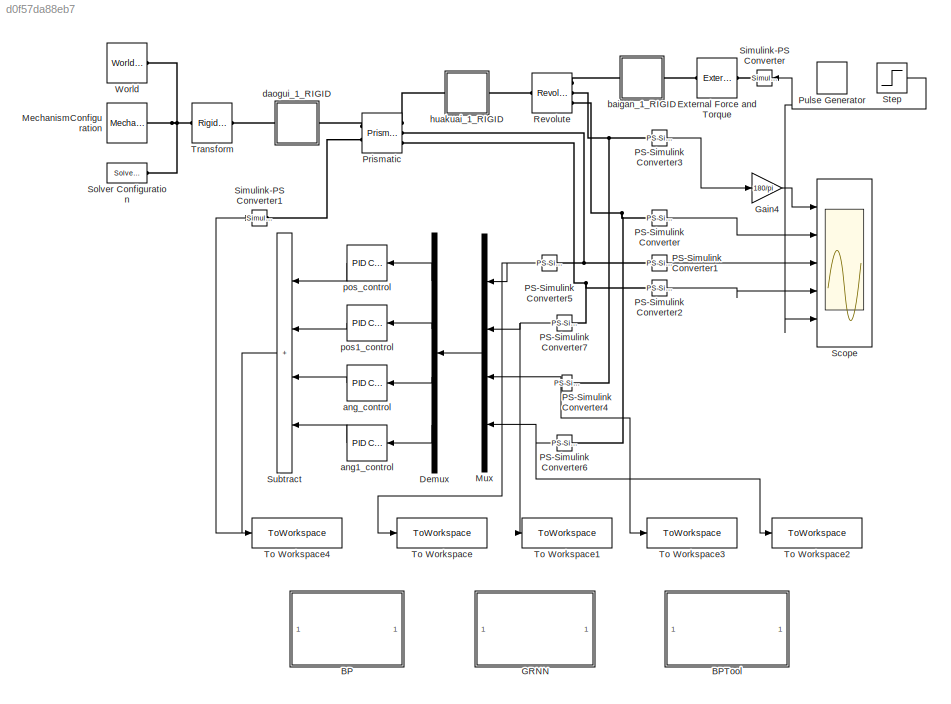
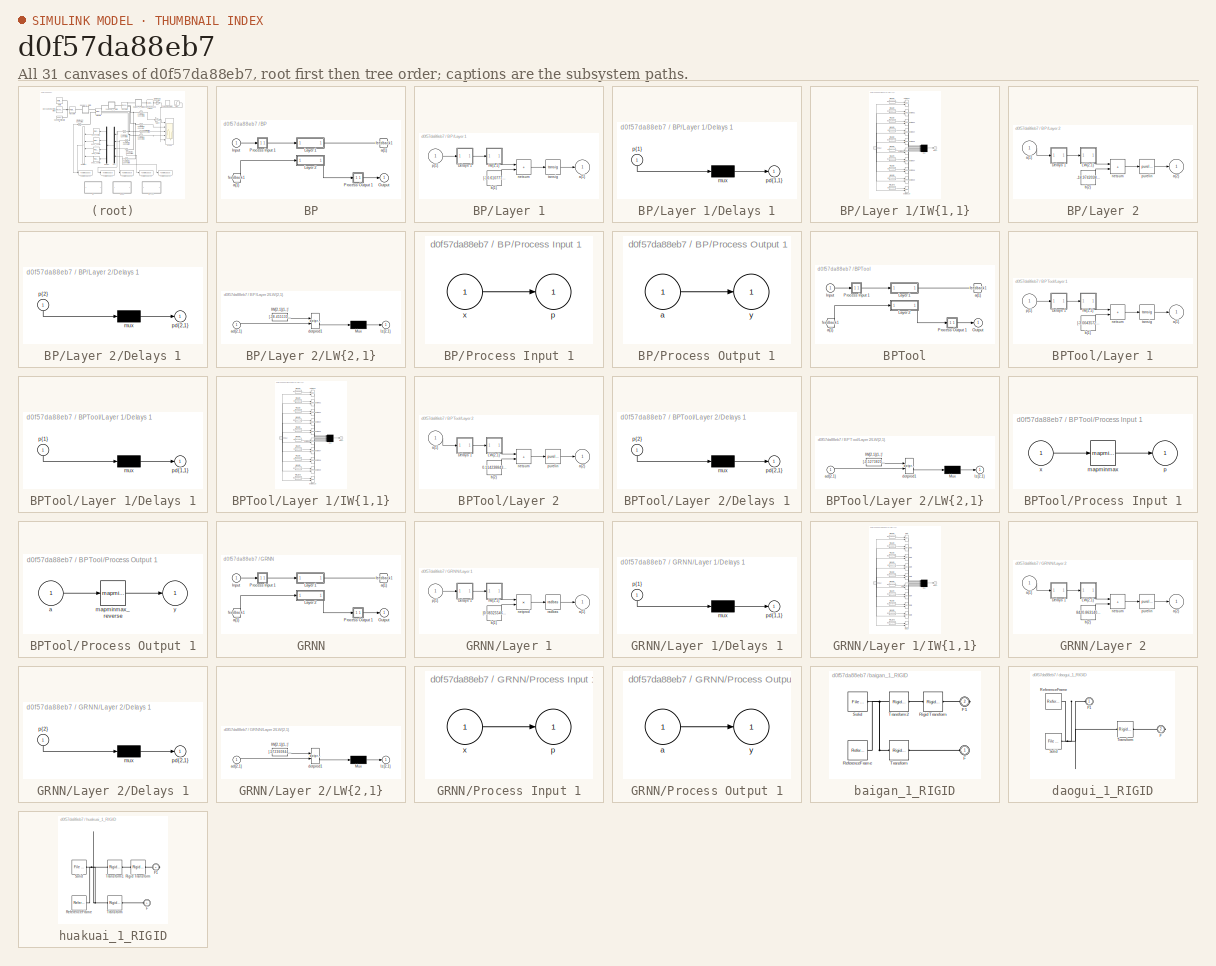
[diagram: thumbnail index - all 31 canvases of the model, root first then tree order]
MODEL slx_d0f57da88eb7
KIND model
CONFIG AbsTol = auto
CONFIG EnableMultiTasking = off
CONFIG FixedStep = auto
CONFIG MaxStep = auto
CONFIG MinStep = auto
CONFIG RelTol = 1e-3
CONFIG SampleTimeConstraint = Unconstrained
CONFIG SolverName = VariableStepAuto
CONFIG StartTime = 0.0
CONFIG StopTime = 20
WORKSPACE source: external: MATLAB File  (data not in archive)
BLOCK [SubSystem] BP
  PortSchema = {"entries":[{"content":{"sides":[{"content":{"connectorIds":["Out1"]},"type":"ConnectorPlacement.EquallySpacedRectSide","uuid":"ea97cf08-b84c-4223-8914-1b28841d179d"},{"content":{"connectorIds":["In1"],"side":"RIGHT"},"type":"ConnectorPlacement.EquallySpacedRectSide","uuid":"202f11d8-69ca-41ad-a097-102b173584e2"},{"content":{"connectorIds":[],"side":"TOP"},"type":"ConnectorPlacement.EquallySpacedR...<+384ch>
  Ports = [1, 1]
  RequestExecContextInheritance = off
BLOCK [From] BP/ a{1} 
  GotoTag = feedback1
BLOCK [Inport] BP/Input
  PortDimensions = 4
BLOCK [SubSystem] BP/Layer 1
  Ports = [1, 1]
  RequestExecContextInheritance = off
BLOCK [SubSystem] BP/Layer 1/Delays 1
  Ports = [1, 1]
  RequestExecContextInheritance = off
BLOCK [Mux] BP/Layer 1/Delays 1/mux
  Inputs = 1
  Ports = [1, 1]
BLOCK [Outport] BP/Layer 1/Delays 1/pd{1,1}
BLOCK [Inport] BP/Layer 1/Delays 1/p{1}
  NameLocation = left
  PortDimensions = 4
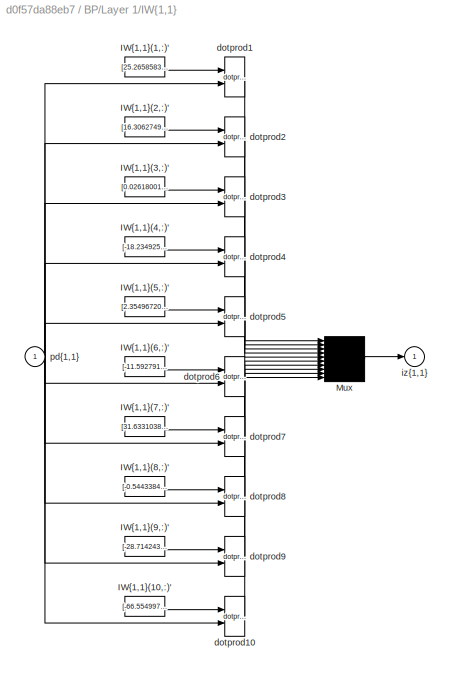
BLOCK [SubSystem] BP/Layer 1/IW{1,1}
  Ports = [1, 1]
  RequestExecContextInheritance = off
BLOCK [Constant] BP/Layer 1/IW{1,1}/IW{1,1}(1,:)'
  Value = [25.265858364663404955763326142914593219757080078125;-1.8103383963867403227965269252308644354343414306640625;-6.001229644292774167979587218724191188812255859375;-5.55789998735645962568696631933562457561492919921875]
BLOCK [Constant] BP/Layer 1/IW{1,1}/IW{1,1}(10,:)'
  Value = [-66.5549972771616609179545775987207889556884765625;-13.87429734900216971027475665323436260223388671875;-139.206120748230347317075938917696475982666015625;-9.0261640295758862606589900678955018520355224609375]
BLOCK [Constant] BP/Layer 1/IW{1,1}/IW{1,1}(2,:)'
  Value = [16.30627491953763552601230912841856479644775390625;12.6058566662972157956801311229355633258819580078125;9.27814044969331774836973636411130428314208984375;5.47891062646043724981836930965073406696319580078125]
BLOCK [Constant] BP/Layer 1/IW{1,1}/IW{1,1}(3,:)'
  Value = [0.026180015617267571315096574835479259490966796875;0.12015844470270507782228008863967261277139186859130859375;2.015201693149206274568996377638541162014007568359375;0.35738959136847336939268870992236770689487457275390625]
BLOCK [Constant] BP/Layer 1/IW{1,1}/IW{1,1}(4,:)'
  Value = [-18.234925386308528771905912435613572597503662109375;-8.88063620261446118320236564613878726959228515625;-20.80489562286691551662443089298903942108154296875;-6.39369866292602662127819712623022496700286865234375]
BLOCK [Constant] BP/Layer 1/IW{1,1}/IW{1,1}(5,:)'
  Value = [2.3549672050158694247556923073716461658477783203125;1.9263331860842443088444042587070725858211517333984375;23.840886487599139087478761211968958377838134765625;3.147023623487724908187601613462902605533599853515625]
BLOCK [Constant] BP/Layer 1/IW{1,1}/IW{1,1}(6,:)'
  Value = [-11.5927919573528921404204083955846726894378662109375;-6.75611608060503154860043650842271745204925537109375;31.2778651028639131936870398931205272674560546875;-6.550890424082698615393383079208433628082275390625]
BLOCK [Constant] BP/Layer 1/IW{1,1}/IW{1,1}(7,:)'
  Value = [31.633103850419256986015170696191489696502685546875;4.32344873467781010134558528079651296138763427734375;37.3554718668593039865299942903220653533935546875;1.9563005735288301334406924070208333432674407958984375]
BLOCK [Constant] BP/Layer 1/IW{1,1}/IW{1,1}(8,:)'
  Value = [-0.5443384659674295189546455731033347547054290771484375;-0.89206844033772647595270655074273236095905303955078125;1.154125203998702442476087526301853358745574951171875;-2.016004353430647544342946275719441473484039306640625]
BLOCK [Constant] BP/Layer 1/IW{1,1}/IW{1,1}(9,:)'
  Value = [-28.714243206021915710834946366958320140838623046875;-4.09986652458790334918603548430837690830230712890625;26.073463271938674523653389769606292247772216796875;-5.07935832977870038718037903890945017337799072265625]
BLOCK [Mux] BP/Layer 1/IW{1,1}/Mux
  Inputs = 10
  Ports = [10, 1]
BLOCK [Reference] BP/Layer 1/IW{1,1}/dotprod1  REF=neural/Weight Functions/dotprod
  Ports = [2, 1]
  SourceBlock = neural/Weight Functions/dotprod
  SourceProductBaseCode = NN
  SourceType = DOTPROD
BLOCK [Reference] BP/Layer 1/IW{1,1}/dotprod10  REF=neural/Weight Functions/dotprod
  Ports = [2, 1]
  SourceBlock = neural/Weight Functions/dotprod
  SourceProductBaseCode = NN
  SourceType = DOTPROD
BLOCK [Reference] BP/Layer 1/IW{1,1}/dotprod2  REF=neural/Weight Functions/dotprod
  Ports = [2, 1]
  SourceBlock = neural/Weight Functions/dotprod
  SourceProductBaseCode = NN
  SourceType = DOTPROD
BLOCK [Reference] BP/Layer 1/IW{1,1}/dotprod3  REF=neural/Weight Functions/dotprod
  Ports = [2, 1]
  SourceBlock = neural/Weight Functions/dotprod
  SourceProductBaseCode = NN
  SourceType = DOTPROD
BLOCK [Reference] BP/Layer 1/IW{1,1}/dotprod4  REF=neural/Weight Functions/dotprod
  Ports = [2, 1]
  SourceBlock = neural/Weight Functions/dotprod
  SourceProductBaseCode = NN
  SourceType = DOTPROD
BLOCK [Reference] BP/Layer 1/IW{1,1}/dotprod5  REF=neural/Weight Functions/dotprod
  Ports = [2, 1]
  SourceBlock = neural/Weight Functions/dotprod
  SourceProductBaseCode = NN
  SourceType = DOTPROD
BLOCK [Reference] BP/Layer 1/IW{1,1}/dotprod6  REF=neural/Weight Functions/dotprod
  Ports = [2, 1]
  SourceBlock = neural/Weight Functions/dotprod
  SourceProductBaseCode = NN
  SourceType = DOTPROD
BLOCK [Reference] BP/Layer 1/IW{1,1}/dotprod7  REF=neural/Weight Functions/dotprod
  Ports = [2, 1]
  SourceBlock = neural/Weight Functions/dotprod
  SourceProductBaseCode = NN
  SourceType = DOTPROD
BLOCK [Reference] BP/Layer 1/IW{1,1}/dotprod8  REF=neural/Weight Functions/dotprod
  Ports = [2, 1]
  SourceBlock = neural/Weight Functions/dotprod
  SourceProductBaseCode = NN
  SourceType = DOTPROD
BLOCK [Reference] BP/Layer 1/IW{1,1}/dotprod9  REF=neural/Weight Functions/dotprod
  Ports = [2, 1]
  SourceBlock = neural/Weight Functions/dotprod
  SourceProductBaseCode = NN
  SourceType = DOTPROD
BLOCK [Outport] BP/Layer 1/IW{1,1}/iz{1,1}
BLOCK [Inport] BP/Layer 1/IW{1,1}/pd{1,1}
  PortDimensions = 4
BLOCK [Outport] BP/Layer 1/a{1}
  InitialOutput = [0;0;0;0;0;0;0;0;0;0]
BLOCK [Constant] BP/Layer 1/b{1}
  Value = [-10.6107770440542008572037957492284476757049560546875;-9.0214618077921411298802922829054296016693115234375;0.201710144795275991835836748578003607690334320068359375;7.7779699911773452214447388541884720325469970703125;-4.868489967269315599196488619782030582427978515625;-9.6841058845055858483874544617719948291778564453125;-8.3997608801577055004372596158646047115325927734375;-2.2391316142781723108612...<+136ch>
BLOCK [Sum] BP/Layer 1/netsum
  IconShape = rectangular
  InputSameDT = on
  Inputs = 2
  OutDataTypeStr = Inherit: Same as first input
  Ports = [2, 1]
  SaturateOnIntegerOverflow = on
BLOCK [Inport] BP/Layer 1/p{1}
  PortDimensions = 4
BLOCK [Reference] BP/Layer 1/tansig  REF=neural/Transfer Functions/tansig
  Ports = [1, 1]
  SourceBlock = neural/Transfer Functions/tansig
  SourceProductBaseCode = NN
  SourceType = TANSIG
BLOCK [SubSystem] BP/Layer 2
  Ports = [1, 1]
  RequestExecContextInheritance = off
BLOCK [SubSystem] BP/Layer 2/Delays 1
  Ports = [1, 1]
  RequestExecContextInheritance = off
BLOCK [Mux] BP/Layer 2/Delays 1/mux
  Inputs = 1
  Ports = [1, 1]
BLOCK [Outport] BP/Layer 2/Delays 1/pd{2,1}
BLOCK [Inport] BP/Layer 2/Delays 1/p{2}
  NameLocation = left
  PortDimensions = 10
BLOCK [SubSystem] BP/Layer 2/LW{2,1}
  Ports = [1, 1]
  RequestExecContextInheritance = off
BLOCK [Constant] BP/Layer 2/LW{2,1}/IW{2,1}(1,:)'
  Value = [-38.455131207282562399996095336973667144775390625;-29.19610397380950672641120036132633686065673828125;35.416569242447991427980014123022556304931640625;58.27563616794508760676762904040515422821044921875;41.697440287352009136156993918120861053466796875;42.61450575008218066841436666436493396759033203125;-17.94003038084166945509423385374248027801513671875;25.100002955498659673594374908134341239929199...<+106ch>
BLOCK [Mux] BP/Layer 2/LW{2,1}/Mux
  Inputs = 1
  Ports = [1, 1]
BLOCK [Inport] BP/Layer 2/LW{2,1}/ad{2,1}
  PortDimensions = 10
BLOCK [Reference] BP/Layer 2/LW{2,1}/dotprod1  REF=neural/Weight Functions/dotprod
  Ports = [2, 1]
  SourceBlock = neural/Weight Functions/dotprod
  SourceProductBaseCode = NN
  SourceType = DOTPROD
BLOCK [Outport] BP/Layer 2/LW{2,1}/lz{2,1}
BLOCK [Inport] BP/Layer 2/a{1} 
  PortDimensions = 10
BLOCK [Outport] BP/Layer 2/a{2}
  InitialOutput = 0
BLOCK [Constant] BP/Layer 2/b{2}
  Value = -18.97420382072682087937209871597588062286376953125
BLOCK [Sum] BP/Layer 2/netsum
  IconShape = rectangular
  InputSameDT = on
  Inputs = 2
  OutDataTypeStr = Inherit: Same as first input
  Ports = [2, 1]
  SaturateOnIntegerOverflow = on
BLOCK [Reference] BP/Layer 2/purelin  REF=neural/Transfer Functions/purelin
  Ports = [1, 1]
  SourceBlock = neural/Transfer Functions/purelin
  SourceProductBaseCode = NN
  SourceType = PURELIN
BLOCK [Outport] BP/Output
  InitialOutput = 0
BLOCK [SubSystem] BP/Process Input 1
  Ports = [1, 1]
  RequestExecContextInheritance = off
BLOCK [Outport] BP/Process Input 1/p
  PortDimensions = 4
BLOCK [Inport] BP/Process Input 1/x
  PortDimensions = 4
BLOCK [SubSystem] BP/Process Output 1
  Ports = [1, 1]
  RequestExecContextInheritance = off
BLOCK [Inport] BP/Process Output 1/a
  PortDimensions = 1
BLOCK [Outport] BP/Process Output 1/y
  PortDimensions = 1
BLOCK [Goto] BP/a{1}
  GotoTag = feedback1
BLOCK [SubSystem] BPTool
  PortSchema = {"entries":[{"content":{"sides":[{"content":{"connectorIds":["Out1"]},"type":"ConnectorPlacement.EquallySpacedRectSide","uuid":"ea97cf08-b84c-4223-8914-1b28841d179d"},{"content":{"connectorIds":["In1"],"side":"RIGHT"},"type":"ConnectorPlacement.EquallySpacedRectSide","uuid":"202f11d8-69ca-41ad-a097-102b173584e2"},{"content":{"connectorIds":[],"side":"TOP"},"type":"ConnectorPlacement.EquallySpacedR...<+384ch>
  Ports = [1, 1]
  RequestExecContextInheritance = off
BLOCK [From] BPTool/ a{1} 
  GotoTag = feedback1
BLOCK [Inport] BPTool/Input
  PortDimensions = 4
BLOCK [SubSystem] BPTool/Layer 1
  Ports = [1, 1]
  RequestExecContextInheritance = off
BLOCK [SubSystem] BPTool/Layer 1/Delays 1
  Ports = [1, 1]
  RequestExecContextInheritance = off
BLOCK [Mux] BPTool/Layer 1/Delays 1/mux
  Inputs = 1
  Ports = [1, 1]
BLOCK [Outport] BPTool/Layer 1/Delays 1/pd{1,1}
BLOCK [Inport] BPTool/Layer 1/Delays 1/p{1}
  NameLocation = left
  PortDimensions = 4
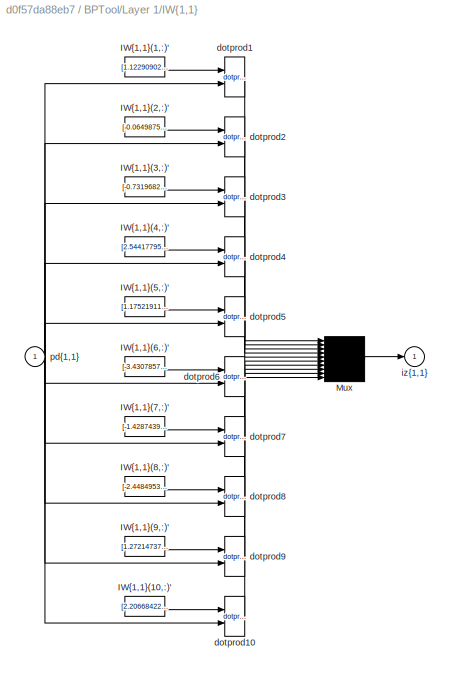
BLOCK [SubSystem] BPTool/Layer 1/IW{1,1}
  Ports = [1, 1]
  RequestExecContextInheritance = off
BLOCK [Constant] BPTool/Layer 1/IW{1,1}/IW{1,1}(1,:)'
  Value = [1.1229090279324125400961520426790229976177215576171875;-2.645066374273375320314016789779998362064361572265625;-0.404428069011812940658501247526146471500396728515625;-0.316292401019539759499110687102074734866619110107421875]
BLOCK [Constant] BPTool/Layer 1/IW{1,1}/IW{1,1}(10,:)'
  Value = [2.20668422210949710660088385338895022869110107421875;2.884345568190866071489608657429926097393035888671875;1.5569083249624628972895834522205404937267303466796875;3.093651462767843529633182697580195963382720947265625]
BLOCK [Constant] BPTool/Layer 1/IW{1,1}/IW{1,1}(2,:)'
  Value = [-0.06498756526824985002566137382018496282398700714111328125;1.2414236159949834092941500784945674240589141845703125;0.8598113844266699334895065476302988827228546142578125;-1.1505116576420937324343185537145473062992095947265625]
BLOCK [Constant] BPTool/Layer 1/IW{1,1}/IW{1,1}(3,:)'
  Value = [-0.73196823514489472994881680278922431170940399169921875;3.88576268981829020532359209028072655200958251953125;0.09304187708607451756659401098659145645797252655029296875;0.89366995774699808929852906658197753131389617919921875]
BLOCK [Constant] BPTool/Layer 1/IW{1,1}/IW{1,1}(4,:)'
  Value = [2.544177950861187920139627749449573457241058349609375;0.670342910631637867169274613843299448490142822265625;1.6277748981667017336150138362427242100238800048828125;-0.7907585439848305863819177830009721219539642333984375]
BLOCK [Constant] BPTool/Layer 1/IW{1,1}/IW{1,1}(5,:)'
  Value = [1.1752191137397949294296495281741954386234283447265625;1.7067504805808189072280356413102708756923675537109375;-0.98889683810537587493882938360911794006824493408203125;-2.01299639868461266445365254185162484645843505859375]
BLOCK [Constant] BPTool/Layer 1/IW{1,1}/IW{1,1}(6,:)'
  Value = [-3.430785741213546291561442558304406702518463134765625;0.09492075313908643341420656724949367344379425048828125;-3.921727779432336635778710842714644968509674072265625;-0.268199375499008796364108775378554128110408782958984375]
BLOCK [Constant] BPTool/Layer 1/IW{1,1}/IW{1,1}(7,:)'
  Value = [-1.4287439095481395678888247857685200870037078857421875;0.3425243201013203897531411712407134473323822021484375;2.14636659086642822558133048005402088165283203125;3.774275490297800406125361405429430305957794189453125]
BLOCK [Constant] BPTool/Layer 1/IW{1,1}/IW{1,1}(8,:)'
  Value = [-2.4484953047126705172331639914773404598236083984375;0.92009365259292918981515185805619694292545318603515625;-0.1515431830645543043178946618354530073702335357666015625;0.88777515878687662809198855029535479843616485595703125]
BLOCK [Constant] BPTool/Layer 1/IW{1,1}/IW{1,1}(9,:)'
  Value = [1.272147373788531155014425166882574558258056640625;2.194558914347468192573842316051013767719268798828125;-0.96613593652774698572471834268071688711643218994140625;0.6387971891737322938098486702074296772480010986328125]
BLOCK [Mux] BPTool/Layer 1/IW{1,1}/Mux
  Inputs = 10
  Ports = [10, 1]
BLOCK [Reference] BPTool/Layer 1/IW{1,1}/dotprod1  REF=neural/Weight Functions/dotprod
  Ports = [2, 1]
  SourceBlock = neural/Weight Functions/dotprod
  SourceProductBaseCode = NN
  SourceType = DOTPROD
BLOCK [Reference] BPTool/Layer 1/IW{1,1}/dotprod10  REF=neural/Weight Functions/dotprod
  Ports = [2, 1]
  SourceBlock = neural/Weight Functions/dotprod
  SourceProductBaseCode = NN
  SourceType = DOTPROD
BLOCK [Reference] BPTool/Layer 1/IW{1,1}/dotprod2  REF=neural/Weight Functions/dotprod
  Ports = [2, 1]
  SourceBlock = neural/Weight Functions/dotprod
  SourceProductBaseCode = NN
  SourceType = DOTPROD
BLOCK [Reference] BPTool/Layer 1/IW{1,1}/dotprod3  REF=neural/Weight Functions/dotprod
  Ports = [2, 1]
  SourceBlock = neural/Weight Functions/dotprod
  SourceProductBaseCode = NN
  SourceType = DOTPROD
BLOCK [Reference] BPTool/Layer 1/IW{1,1}/dotprod4  REF=neural/Weight Functions/dotprod
  Ports = [2, 1]
  SourceBlock = neural/Weight Functions/dotprod
  SourceProductBaseCode = NN
  SourceType = DOTPROD
BLOCK [Reference] BPTool/Layer 1/IW{1,1}/dotprod5  REF=neural/Weight Functions/dotprod
  Ports = [2, 1]
  SourceBlock = neural/Weight Functions/dotprod
  SourceProductBaseCode = NN
  SourceType = DOTPROD
BLOCK [Reference] BPTool/Layer 1/IW{1,1}/dotprod6  REF=neural/Weight Functions/dotprod
  Ports = [2, 1]
  SourceBlock = neural/Weight Functions/dotprod
  SourceProductBaseCode = NN
  SourceType = DOTPROD
BLOCK [Reference] BPTool/Layer 1/IW{1,1}/dotprod7  REF=neural/Weight Functions/dotprod
  Ports = [2, 1]
  SourceBlock = neural/Weight Functions/dotprod
  SourceProductBaseCode = NN
  SourceType = DOTPROD
BLOCK [Reference] BPTool/Layer 1/IW{1,1}/dotprod8  REF=neural/Weight Functions/dotprod
  Ports = [2, 1]
  SourceBlock = neural/Weight Functions/dotprod
  SourceProductBaseCode = NN
  SourceType = DOTPROD
BLOCK [Reference] BPTool/Layer 1/IW{1,1}/dotprod9  REF=neural/Weight Functions/dotprod
  Ports = [2, 1]
  SourceBlock = neural/Weight Functions/dotprod
  SourceProductBaseCode = NN
  SourceType = DOTPROD
BLOCK [Outport] BPTool/Layer 1/IW{1,1}/iz{1,1}
BLOCK [Inport] BPTool/Layer 1/IW{1,1}/pd{1,1}
  PortDimensions = 4
BLOCK [Outport] BPTool/Layer 1/a{1}
  InitialOutput = [0;0;0;0;0;0;0;0;0;0]
BLOCK [Constant] BPTool/Layer 1/b{1}
  Value = [-3.00435728790505240937136477441526949405670166015625;-0.656454130346032282972146276733838021755218505859375;4.09710221202972935117259112303145229816436767578125;-4.01269699463378071158103921334259212017059326171875;-0.1449035741753040007484543139071320183575153350830078125;0.61340971503073415949103264210862107574939727783203125;-3.931337135228960999455694036441855132579803466796875;5.56388769055...<+150ch>
BLOCK [Sum] BPTool/Layer 1/netsum
  IconShape = rectangular
  InputSameDT = on
  Inputs = 2
  OutDataTypeStr = Inherit: Same as first input
  Ports = [2, 1]
  SaturateOnIntegerOverflow = on
BLOCK [Inport] BPTool/Layer 1/p{1}
  PortDimensions = 4
BLOCK [Reference] BPTool/Layer 1/tansig  REF=neural/Transfer Functions/tansig
  Ports = [1, 1]
  SourceBlock = neural/Transfer Functions/tansig
  SourceProductBaseCode = NN
  SourceType = TANSIG
BLOCK [SubSystem] BPTool/Layer 2
  Ports = [1, 1]
  RequestExecContextInheritance = off
BLOCK [SubSystem] BPTool/Layer 2/Delays 1
  Ports = [1, 1]
  RequestExecContextInheritance = off
BLOCK [Mux] BPTool/Layer 2/Delays 1/mux
  Inputs = 1
  Ports = [1, 1]
BLOCK [Outport] BPTool/Layer 2/Delays 1/pd{2,1}
BLOCK [Inport] BPTool/Layer 2/Delays 1/p{2}
  NameLocation = left
  PortDimensions = 10
BLOCK [SubSystem] BPTool/Layer 2/LW{2,1}
  Ports = [1, 1]
  RequestExecContextInheritance = off
BLOCK [Constant] BPTool/Layer 2/LW{2,1}/IW{2,1}(1,:)'
  Value = [-0.52738254650346083618472903253859840333461761474609375;-0.032672152667297164885251703481117147020995616912841796875;-0.92971623236840217341381276128231547772884368896484375;-0.03765291007553793478646042558466433547437191009521484375;-0.05094799929649181102764288198159192688763141632080078125;-1.017603752522325155638327487395144999027252197265625;0.03567197080063878172895286411403503734618425369...<+185ch>
BLOCK [Mux] BPTool/Layer 2/LW{2,1}/Mux
  Inputs = 1
  Ports = [1, 1]
BLOCK [Inport] BPTool/Layer 2/LW{2,1}/ad{2,1}
  PortDimensions = 10
BLOCK [Reference] BPTool/Layer 2/LW{2,1}/dotprod1  REF=neural/Weight Functions/dotprod
  Ports = [2, 1]
  SourceBlock = neural/Weight Functions/dotprod
  SourceProductBaseCode = NN
  SourceType = DOTPROD
BLOCK [Outport] BPTool/Layer 2/LW{2,1}/lz{2,1}
BLOCK [Inport] BPTool/Layer 2/a{1} 
  PortDimensions = 10
BLOCK [Outport] BPTool/Layer 2/a{2}
  InitialOutput = 0
BLOCK [Constant] BPTool/Layer 2/b{2}
  Value = 0.1142388432489153393678549264222965575754642486572265625
BLOCK [Sum] BPTool/Layer 2/netsum
  IconShape = rectangular
  InputSameDT = on
  Inputs = 2
  OutDataTypeStr = Inherit: Same as first input
  Ports = [2, 1]
  SaturateOnIntegerOverflow = on
BLOCK [Reference] BPTool/Layer 2/purelin  REF=neural/Transfer Functions/purelin
  Ports = [1, 1]
  SourceBlock = neural/Transfer Functions/purelin
  SourceProductBaseCode = NN
  SourceType = PURELIN
BLOCK [Outport] BPTool/Output
  InitialOutput = 0
BLOCK [SubSystem] BPTool/Process Input 1
  Ports = [1, 1]
  RequestExecContextInheritance = off
BLOCK [Reference] BPTool/Process Input 1/mapminmax  REF=neural/Processing Functions/mapminmax
  Ports = [1, 1]
  SourceBlock = neural/Processing Functions/mapminmax
  SourceProductBaseCode = NN
  SourceType = MAPMINMAX Preprocess
BLOCK [Outport] BPTool/Process Input 1/p
  PortDimensions = 4
BLOCK [Inport] BPTool/Process Input 1/x
  PortDimensions = 4
BLOCK [SubSystem] BPTool/Process Output 1
  Ports = [1, 1]
  RequestExecContextInheritance = off
BLOCK [Inport] BPTool/Process Output 1/a
  PortDimensions = 1
BLOCK [Reference] BPTool/Process Output 1/mapminmax_reverse  REF=neural/Processing Functions/mapminmax_reverse
  Ports = [1, 1]
  SourceBlock = neural/Processing Functions/mapminmax_reverse
  SourceProductBaseCode = NN
  SourceType = MAPMINMAX Reverse Process
BLOCK [Outport] BPTool/Process Output 1/y
  PortDimensions = 1
BLOCK [Goto] BPTool/a{1}
  GotoTag = feedback1
BLOCK [Demux] Demux
  NameLocation = top
  Ports = [1, 4]
BLOCK [Reference] External Force and Torque  REF=sm_lib/Forces and
Torques/External Force
and Torque
  NameLocation = top
  Ports = [0, 0, 0, 0, 0, 1, 1]
  SourceBlock = sm_lib/Forces and\nTorques/External Force\nand Torque
  SourceProductBaseCode = MS
  SourceType = External Force\nand Torque
BLOCK [SubSystem] GRNN
  PortSchema = {"entries":[{"content":{"sides":[{"content":{"connectorIds":["Out1"]},"type":"ConnectorPlacement.EquallySpacedRectSide","uuid":"ea97cf08-b84c-4223-8914-1b28841d179d"},{"content":{"connectorIds":["In1"],"side":"RIGHT"},"type":"ConnectorPlacement.EquallySpacedRectSide","uuid":"202f11d8-69ca-41ad-a097-102b173584e2"},{"content":{"connectorIds":[],"side":"TOP"},"type":"ConnectorPlacement.EquallySpacedR...<+528ch>
  Ports = [1, 1]
  RequestExecContextInheritance = off
BLOCK [From] GRNN/ a{1} 
  GotoTag = feedback1
BLOCK [Inport] GRNN/Input
  PortDimensions = 4
BLOCK [SubSystem] GRNN/Layer 1
  Ports = [1, 1]
  RequestExecContextInheritance = off
BLOCK [SubSystem] GRNN/Layer 1/Delays 1
  Ports = [1, 1]
  RequestExecContextInheritance = off
BLOCK [Mux] GRNN/Layer 1/Delays 1/mux
  Inputs = 1
  Ports = [1, 1]
BLOCK [Outport] GRNN/Layer 1/Delays 1/pd{1,1}
BLOCK [Inport] GRNN/Layer 1/Delays 1/p{1}
  NameLocation = left
  PortDimensions = 4
BLOCK [SubSystem] GRNN/Layer 1/IW{1,1}
  Ports = [1, 1]
  RequestExecContextInheritance = off
BLOCK [Constant] GRNN/Layer 1/IW{1,1}/IW{1,1}(1,:)'
  Value = [0.0725331725404625426989468905958347022533416748046875;1.7837528659619630300170456393971107900142669677734375;0.1821328693272616927600893177441321313381195068359375;-2.334477541731148075854207490920089185237884521484375]
BLOCK [Constant] GRNN/Layer 1/IW{1,1}/IW{1,1}(10,:)'
  Value = [0.032404842447793964776980857322996598668396472930908203125;-0.00469003258014368852590880720754284993745386600494384765625;-6.623641680489217591250306060857155898702330887317657470703125e-05;0.000508570481755021472879130239874712060554884374141693115234375]
BLOCK [Constant] GRNN/Layer 1/IW{1,1}/IW{1,1}(2,:)'
  Value = [0.10155577171343059539321274087342317216098308563232421875;1.7318748285971949929518132194061763584613800048828125;0.144611734199708796833050428176647983491420745849609375;-2.209015017389865942476490090484730899333953857421875]
BLOCK [Constant] GRNN/Layer 1/IW{1,1}/IW{1,1}(3,:)'
  Value = [0.04731488321092318372063090237134019844233989715576171875;1.7115558546010130047676511821919120848178863525390625;0.2154346730458002456831678728121914900839328765869140625;-2.27892776677020147957364315516315400600433349609375]
BLOCK [Constant] GRNN/Layer 1/IW{1,1}/IW{1,1}(4,:)'
  Value = [-0.005027084716362511217224717796625554910860955715179443359375;0.1701787953756520865855605961769470013678073883056640625;0.028738173855598465877836389381627668626606464385986328125;-0.08578068838796333583918141130197909660637378692626953125]
BLOCK [Constant] GRNN/Layer 1/IW{1,1}/IW{1,1}(5,:)'
  Value = [0.020312986169675147085644795197367784567177295684814453125;0.2020862713209329031283090216675191186368465423583984375;0.0169134984450032554992304767438326962292194366455078125;-0.08827663983406057457425930579120176844298839569091796875]
BLOCK [Constant] GRNN/Layer 1/IW{1,1}/IW{1,1}(6,:)'
  Value = [0.028153891819299538268328575441046268679201602935791015625;1.511432793256257678393694732221774756908416748046875;0.2410879874454342763900882573580020107328891754150390625;-2.03411427734510663611899872194044291973114013671875]
BLOCK [Constant] GRNN/Layer 1/IW{1,1}/IW{1,1}(7,:)'
  Value = [0.13247137410489029374360825386247597634792327880859375;1.5972356841649999470433840542682446539402008056640625;0.10585258419716254973952374029977363534271717071533203125;-1.9645872609289904975327090141945518553256988525390625]
BLOCK [Constant] GRNN/Layer 1/IW{1,1}/IW{1,1}(8,:)'
  Value = [0.1667870451161795053440783931364421732723712921142578125;1.405163467051229186921545988298021256923675537109375;0.0647138584173257147558189217306789942085742950439453125;-1.6367815099621143559716074378229677677154541015625]
BLOCK [Constant] GRNN/Layer 1/IW{1,1}/IW{1,1}(9,:)'
  Value = [0.08486980720061054750402718127588741481304168701171875;0.201130967300382101914379973095492459833621978759765625;-0.0081014435693664392512669536472458275966346263885498046875;-0.0692133501048840249492144494070089422166347503662109375]
BLOCK [Mux] GRNN/Layer 1/IW{1,1}/Mux
  Inputs = 10
  Ports = [10, 1]
BLOCK [Reference] GRNN/Layer 1/IW{1,1}/dist1  REF=neural/Weight Functions/dist
  Ports = [2, 1]
  SourceBlock = neural/Weight Functions/dist
  SourceProductBaseCode = NN
  SourceType = DIST
BLOCK [Reference] GRNN/Layer 1/IW{1,1}/dist10  REF=neural/Weight Functions/dist
  Ports = [2, 1]
  SourceBlock = neural/Weight Functions/dist
  SourceProductBaseCode = NN
  SourceType = DIST
BLOCK [Reference] GRNN/Layer 1/IW{1,1}/dist2  REF=neural/Weight Functions/dist
  Ports = [2, 1]
  SourceBlock = neural/Weight Functions/dist
  SourceProductBaseCode = NN
  SourceType = DIST
BLOCK [Reference] GRNN/Layer 1/IW{1,1}/dist3  REF=neural/Weight Functions/dist
  Ports = [2, 1]
  SourceBlock = neural/Weight Functions/dist
  SourceProductBaseCode = NN
  SourceType = DIST
BLOCK [Reference] GRNN/Layer 1/IW{1,1}/dist4  REF=neural/Weight Functions/dist
  Ports = [2, 1]
  SourceBlock = neural/Weight Functions/dist
  SourceProductBaseCode = NN
  SourceType = DIST
BLOCK [Reference] GRNN/Layer 1/IW{1,1}/dist5  REF=neural/Weight Functions/dist
  Ports = [2, 1]
  SourceBlock = neural/Weight Functions/dist
  SourceProductBaseCode = NN
  SourceType = DIST
BLOCK [Reference] GRNN/Layer 1/IW{1,1}/dist6  REF=neural/Weight Functions/dist
  Ports = [2, 1]
  SourceBlock = neural/Weight Functions/dist
  SourceProductBaseCode = NN
  SourceType = DIST
BLOCK [Reference] GRNN/Layer 1/IW{1,1}/dist7  REF=neural/Weight Functions/dist
  Ports = [2, 1]
  SourceBlock = neural/Weight Functions/dist
  SourceProductBaseCode = NN
  SourceType = DIST
BLOCK [Reference] GRNN/Layer 1/IW{1,1}/dist8  REF=neural/Weight Functions/dist
  Ports = [2, 1]
  SourceBlock = neural/Weight Functions/dist
  SourceProductBaseCode = NN
  SourceType = DIST
BLOCK [Reference] GRNN/Layer 1/IW{1,1}/dist9  REF=neural/Weight Functions/dist
  Ports = [2, 1]
  SourceBlock = neural/Weight Functions/dist
  SourceProductBaseCode = NN
  SourceType = DIST
BLOCK [Outport] GRNN/Layer 1/IW{1,1}/iz{1,1}
BLOCK [Inport] GRNN/Layer 1/IW{1,1}/pd{1,1}
  PortDimensions = 4
BLOCK [Outport] GRNN/Layer 1/a{1}
  InitialOutput = [0;0;0;0;0;0;0;0;0;0]
BLOCK [Constant] GRNN/Layer 1/b{1}
  Value = [0.08325546111576977159618451196365640498697757720947265625;0.08325546111576977159618451196365640498697757720947265625;0.08325546111576977159618451196365640498697757720947265625;0.08325546111576977159618451196365640498697757720947265625;0.08325546111576977159618451196365640498697757720947265625;0.08325546111576977159618451196365640498697757720947265625;0.0832554611157697715961845119636564049869775...<+191ch>
BLOCK [Product] GRNN/Layer 1/netprod
  InputSameDT = on
  OutDataTypeStr = Inherit: Same as first input
  Ports = [2, 1]
  RndMeth = Zero
  SaturateOnIntegerOverflow = on
BLOCK [Inport] GRNN/Layer 1/p{1}
  PortDimensions = 4
BLOCK [Reference] GRNN/Layer 1/radbas  REF=neural/Transfer Functions/radbas
  Ports = [1, 1]
  SourceBlock = neural/Transfer Functions/radbas
  SourceProductBaseCode = NN
  SourceType = RADBAS
BLOCK [SubSystem] GRNN/Layer 2
  Ports = [1, 1]
  RequestExecContextInheritance = off
BLOCK [SubSystem] GRNN/Layer 2/Delays 1
  Ports = [1, 1]
  RequestExecContextInheritance = off
BLOCK [Mux] GRNN/Layer 2/Delays 1/mux
  Inputs = 1
  Ports = [1, 1]
BLOCK [Outport] GRNN/Layer 2/Delays 1/pd{2,1}
BLOCK [Inport] GRNN/Layer 2/Delays 1/p{2}
  NameLocation = left
  PortDimensions = 10
BLOCK [SubSystem] GRNN/Layer 2/LW{2,1}
  Ports = [1, 1]
  RequestExecContextInheritance = off
BLOCK [Constant] GRNN/Layer 2/LW{2,1}/IW{2,1}(1,:)'
  Value = [-5723608445.4910106658935546875;8213178301.34892368316650390625;1921857472.512928009033203125;-541712130.6083850860595703125;719720771.096835613250732421875;-212045531.4311373531818389892578125;-5759945319.875728607177734375;1581801470.09878635406494140625;-294099713.972581207752227783203125;94840538.5591432750225067138671875]
BLOCK [Mux] GRNN/Layer 2/LW{2,1}/Mux
  Inputs = 1
  Ports = [1, 1]
BLOCK [Inport] GRNN/Layer 2/LW{2,1}/ad{2,1}
  PortDimensions = 10
BLOCK [Reference] GRNN/Layer 2/LW{2,1}/dotprod1  REF=neural/Weight Functions/dotprod
  Ports = [2, 1]
  SourceBlock = neural/Weight Functions/dotprod
  SourceProductBaseCode = NN
  SourceType = DOTPROD
BLOCK [Outport] GRNN/Layer 2/LW{2,1}/lz{2,1}
BLOCK [Inport] GRNN/Layer 2/a{1} 
  PortDimensions = 10
BLOCK [Outport] GRNN/Layer 2/a{2}
  InitialOutput = 0
BLOCK [Constant] GRNN/Layer 2/b{2}
  Value = 8420.863140254225072567351162433624267578125
BLOCK [Sum] GRNN/Layer 2/netsum
  IconShape = rectangular
  InputSameDT = on
  Inputs = 2
  OutDataTypeStr = Inherit: Same as first input
  Ports = [2, 1]
  SaturateOnIntegerOverflow = on
BLOCK [Reference] GRNN/Layer 2/purelin  REF=neural/Transfer Functions/purelin
  Ports = [1, 1]
  SourceBlock = neural/Transfer Functions/purelin
  SourceProductBaseCode = NN
  SourceType = PURELIN
BLOCK [Outport] GRNN/Output
  InitialOutput = 0
BLOCK [SubSystem] GRNN/Process Input 1
  Ports = [1, 1]
  RequestExecContextInheritance = off
BLOCK [Outport] GRNN/Process Input 1/p
  PortDimensions = 4
BLOCK [Inport] GRNN/Process Input 1/x
  PortDimensions = 4
BLOCK [SubSystem] GRNN/Process Output 1
  Ports = [1, 1]
  RequestExecContextInheritance = off
BLOCK [Inport] GRNN/Process Output 1/a
  PortDimensions = 1
BLOCK [Outport] GRNN/Process Output 1/y
  PortDimensions = 1
BLOCK [Goto] GRNN/a{1}
  GotoTag = feedback1
BLOCK [Gain] Gain4
  Gain = 180/pi
BLOCK [Reference] MechanismConfiguration  REF=sm_lib/Utilities/Mechanism
Configuration
  Ports = [0, 0, 0, 0, 0, 0, 1]
  SourceBlock = sm_lib/Utilities/Mechanism\nConfiguration
  SourceProductBaseCode = MS
  SourceType = Mechanism\nConfiguration
BLOCK [Mux] Mux
  DisplayOption = bar
  NameLocation = top
  Ports = [4, 1]
BLOCK [Reference] PS-Simulink Converter  REF=nesl_utility/PS-Simulink
Converter
  Ports = [0, 1, 0, 0, 0, 1]
  SourceBlock = nesl_utility/PS-Simulink\nConverter
  SourceProductBaseCode = SS
  SourceType = PS-Simulink\nConverter
BLOCK [Reference] PS-Simulink Converter1  REF=nesl_utility/PS-Simulink
Converter
  Ports = [0, 1, 0, 0, 0, 1]
  SourceBlock = nesl_utility/PS-Simulink\nConverter
  SourceProductBaseCode = SS
  SourceType = PS-Simulink\nConverter
BLOCK [Reference] PS-Simulink Converter2  REF=nesl_utility/PS-Simulink
Converter
  Ports = [0, 1, 0, 0, 0, 1]
  SourceBlock = nesl_utility/PS-Simulink\nConverter
  SourceProductBaseCode = SS
  SourceType = PS-Simulink\nConverter
BLOCK [Reference] PS-Simulink Converter3  REF=nesl_utility/PS-Simulink
Converter
  Ports = [0, 1, 0, 0, 0, 1]
  SourceBlock = nesl_utility/PS-Simulink\nConverter
  SourceProductBaseCode = SS
  SourceType = PS-Simulink\nConverter
BLOCK [Reference] PS-Simulink Converter4  REF=nesl_utility/PS-Simulink
Converter
  Ports = [0, 1, 0, 0, 0, 1]
  SourceBlock = nesl_utility/PS-Simulink\nConverter
  SourceProductBaseCode = SS
  SourceType = PS-Simulink\nConverter
BLOCK [Reference] PS-Simulink Converter5  REF=nesl_utility/PS-Simulink
Converter
  Ports = [0, 1, 0, 0, 0, 1]
  SourceBlock = nesl_utility/PS-Simulink\nConverter
  SourceProductBaseCode = SS
  SourceType = PS-Simulink\nConverter
BLOCK [Reference] PS-Simulink Converter6  REF=nesl_utility/PS-Simulink
Converter
  Ports = [0, 1, 0, 0, 0, 1]
  SourceBlock = nesl_utility/PS-Simulink\nConverter
  SourceProductBaseCode = SS
  SourceType = PS-Simulink\nConverter
BLOCK [Reference] PS-Simulink Converter7  REF=nesl_utility/PS-Simulink
Converter
  Ports = [0, 1, 0, 0, 0, 1]
  SourceBlock = nesl_utility/PS-Simulink\nConverter
  SourceProductBaseCode = SS
  SourceType = PS-Simulink\nConverter
BLOCK [Reference] Prismatic  REF=sm_lib/Joints/Prismatic
Joint
  Ports = [0, 0, 0, 0, 0, 2, 3]
  SourceBlock = sm_lib/Joints/Prismatic\nJoint
  SourceProductBaseCode = MS
  SourceType = Prismatic\nJoint
BLOCK [DiscretePulseGenerator] Pulse Generator
  Amplitude = 2
  NameLocation = top
  Period = 5
  PhaseDelay = 5
  Ports = [0, 1]
  PulseType = Time based
  PulseWidth = 5
BLOCK [Reference] Revolute  REF=sm_lib/Joints/Revolute Joint
  Ports = [0, 0, 0, 0, 0, 1, 3]
  SourceBlock = sm_lib/Joints/Revolute Joint
  SourceProductBaseCode = MS
  SourceType = Revolute Joint
BLOCK [Scope] Scope
  Floating = off
  NumInputPorts = 5
  Ports = [5]
  ScopeSpecificationString = Simulink.scopes.TimeScopeBlockCfg('CurrentConfiguration', extmgr.ConfigurationSet(extmgr.Configuration('Core','General UI',true),extmgr.Configuration('Core','Source UI',true),extmgr.Configuration('Sources','WiredSimulink',true),extmgr.Configuration('Visuals','Time Domain',true,'SerializedDisplays',{struct('MinYLimReal','-11.8359','MaxYLimReal','6.52313','YLabelReal','','MinYLimMag','0.00000','MaxY...<+4076ch>
BLOCK [Reference] Simulink-PS Converter  REF=nesl_utility/Simulink-PS
Converter
  NameLocation = top
  Ports = [1, 0, 0, 0, 0, 0, 1]
  SourceBlock = nesl_utility/Simulink-PS\nConverter
  SourceProductBaseCode = SS
  SourceType = Simulink-PS\nConverter
BLOCK [Reference] Simulink-PS Converter1  REF=nesl_utility/Simulink-PS
Converter
  Ports = [1, 0, 0, 0, 0, 0, 1]
  SourceBlock = nesl_utility/Simulink-PS\nConverter
  SourceProductBaseCode = SS
  SourceType = Simulink-PS\nConverter
BLOCK [Reference] Solver Configuration  REF=nesl_utility/Solver
Configuration
  Ports = [0, 0, 0, 0, 0, 0, 1]
  SourceBlock = nesl_utility/Solver\nConfiguration
  SourceProductBaseCode = SS
  SourceType = Solver\nConfiguration
BLOCK [Step] Step
  After = 0
  Before = 1
  SampleTime = 1
BLOCK [Sum] Subtract
  IconShape = rectangular
  Inputs = ++++
  NameLocation = top
  Ports = [4, 1]
BLOCK [ToWorkspace] To Workspace
  FixptAsFi = on
  MaxDataPoints = inf
  Ports = [1]
  SampleTime = -1
  VariableName = GSF_pos
BLOCK [ToWorkspace] To Workspace1
  FixptAsFi = on
  MaxDataPoints = inf
  Ports = [1]
  SampleTime = -1
  VariableName = GSF_pos1
BLOCK [ToWorkspace] To Workspace2
  FixptAsFi = on
  MaxDataPoints = inf
  Ports = [1]
  SampleTime = -1
  VariableName = GSF_ang1
BLOCK [ToWorkspace] To Workspace3
  FixptAsFi = on
  MaxDataPoints = inf
  Ports = [1]
  SampleTime = -1
  VariableName = GSF_ang
BLOCK [ToWorkspace] To Workspace4
  FixptAsFi = on
  MaxDataPoints = inf
  Ports = [1]
  SampleTime = -1
  VariableName = GSF_acc
BLOCK [Reference] Transform  REF=sm_lib/Frames and
Transforms/Rigid
Transform
  Ports = [0, 0, 0, 0, 0, 1, 1]
  SourceBlock = sm_lib/Frames and\nTransforms/Rigid\nTransform
  SourceProductBaseCode = MS
  SourceType = Rigid\nTransform
BLOCK [Reference] World  REF=sm_lib/Frames and
Transforms/World Frame
  Ports = [0, 0, 0, 0, 0, 0, 1]
  SourceBlock = sm_lib/Frames and\nTransforms/World Frame
  SourceProductBaseCode = MS
  SourceType = World Frame
BLOCK [Reference] ang1_control  REF=pid_lib/PID Controller
  Ports = [1, 1]
  SourceBlock = pid_lib/PID Controller
  SourceProductBaseCode = SL
  SourceType = PID 1dof
BLOCK [Reference] ang_control  REF=pid_lib/PID Controller
  Ports = [1, 1]
  SourceBlock = pid_lib/PID Controller
  SourceProductBaseCode = SL
  SourceType = PID 1dof
BLOCK [SubSystem] baigan_1_RIGID
  Ports = [0, 0, 0, 0, 0, 1, 1]
  RequestExecContextInheritance = off
BLOCK [PMIOPort] baigan_1_RIGID/F
  Side = Left
BLOCK [PMIOPort] baigan_1_RIGID/F1
  Port = 2
  Side = Right
BLOCK [Reference] baigan_1_RIGID/ReferenceFrame  REF=sm_lib/Frames and
Transforms/Reference
Frame
  Ports = [0, 0, 0, 0, 0, 0, 1]
  SourceBlock = sm_lib/Frames and\nTransforms/Reference\nFrame
  SourceProductBaseCode = MS
  SourceType = Reference\nFrame
BLOCK [Reference] baigan_1_RIGID/Rigid Transform  REF=sm_lib/Frames and
Transforms/Rigid
Transform
  Ports = [0, 0, 0, 0, 0, 1, 1]
  SourceBlock = sm_lib/Frames and\nTransforms/Rigid\nTransform
  SourceProductBaseCode = MS
  SourceType = Rigid\nTransform
BLOCK [Reference] baigan_1_RIGID/Solid  REF=sm_lib/Body Elements/File Solid
  Ports = [0, 0, 0, 0, 0, 0, 1]
  SourceBlock = sm_lib/Body Elements/File Solid
  SourceProductBaseCode = MS
  SourceType = File Solid
BLOCK [Reference] baigan_1_RIGID/Transform  REF=sm_lib/Frames and
Transforms/Rigid
Transform
  Ports = [0, 0, 0, 0, 0, 1, 1]
  SourceBlock = sm_lib/Frames and\nTransforms/Rigid\nTransform
  SourceProductBaseCode = MS
  SourceType = Rigid\nTransform
BLOCK [Reference] baigan_1_RIGID/Transform2  REF=sm_lib/Frames and
Transforms/Rigid
Transform
  Ports = [0, 0, 0, 0, 0, 1, 1]
  SourceBlock = sm_lib/Frames and\nTransforms/Rigid\nTransform
  SourceProductBaseCode = MS
  SourceType = Rigid\nTransform
BLOCK [SubSystem] daogui_1_RIGID
  Ports = [0, 0, 0, 0, 0, 1, 1]
  RequestExecContextInheritance = off
BLOCK [PMIOPort] daogui_1_RIGID/F
  Port = 2
  Side = Right
BLOCK [PMIOPort] daogui_1_RIGID/F1
  Side = Left
BLOCK [Reference] daogui_1_RIGID/ReferenceFrame  REF=sm_lib/Frames and
Transforms/Reference
Frame
  Ports = [0, 0, 0, 0, 0, 0, 1]
  SourceBlock = sm_lib/Frames and\nTransforms/Reference\nFrame
  SourceProductBaseCode = MS
  SourceType = Reference\nFrame
BLOCK [Reference] daogui_1_RIGID/Solid  REF=sm_lib/Body Elements/File Solid
  Ports = [0, 0, 0, 0, 0, 0, 1]
  SourceBlock = sm_lib/Body Elements/File Solid
  SourceProductBaseCode = MS
  SourceType = File Solid
BLOCK [Reference] daogui_1_RIGID/Transform  REF=sm_lib/Frames and
Transforms/Rigid
Transform
  Ports = [0, 0, 0, 0, 0, 1, 1]
  SourceBlock = sm_lib/Frames and\nTransforms/Rigid\nTransform
  SourceProductBaseCode = MS
  SourceType = Rigid\nTransform
BLOCK [SubSystem] huakuai_1_RIGID
  Ports = [0, 0, 0, 0, 0, 1, 1]
  RequestExecContextInheritance = off
BLOCK [PMIOPort] huakuai_1_RIGID/F
  Side = Left
BLOCK [PMIOPort] huakuai_1_RIGID/F1
  Port = 2
  Side = Right
BLOCK [Reference] huakuai_1_RIGID/ReferenceFrame  REF=sm_lib/Frames and
Transforms/Reference
Frame
  Ports = [0, 0, 0, 0, 0, 0, 1]
  SourceBlock = sm_lib/Frames and\nTransforms/Reference\nFrame
  SourceProductBaseCode = MS
  SourceType = Reference\nFrame
BLOCK [Reference] huakuai_1_RIGID/Rigid Transform  REF=sm_lib/Frames and
Transforms/Rigid
Transform
  Ports = [0, 0, 0, 0, 0, 1, 1]
  SourceBlock = sm_lib/Frames and\nTransforms/Rigid\nTransform
  SourceProductBaseCode = MS
  SourceType = Rigid\nTransform
BLOCK [Reference] huakuai_1_RIGID/Solid  REF=sm_lib/Body Elements/File Solid
  Ports = [0, 0, 0, 0, 0, 0, 1]
  SourceBlock = sm_lib/Body Elements/File Solid
  SourceProductBaseCode = MS
  SourceType = File Solid
BLOCK [Reference] huakuai_1_RIGID/Transform  REF=sm_lib/Frames and
Transforms/Rigid
Transform
  Ports = [0, 0, 0, 0, 0, 1, 1]
  SourceBlock = sm_lib/Frames and\nTransforms/Rigid\nTransform
  SourceProductBaseCode = MS
  SourceType = Rigid\nTransform
BLOCK [Reference] huakuai_1_RIGID/Transform1  REF=sm_lib/Frames and
Transforms/Rigid
Transform
  Ports = [0, 0, 0, 0, 0, 1, 1]
  SourceBlock = sm_lib/Frames and\nTransforms/Rigid\nTransform
  SourceProductBaseCode = MS
  SourceType = Rigid\nTransform
BLOCK [Reference] pos1_control  REF=pid_lib/PID Controller
  Ports = [1, 1]
  SourceBlock = pid_lib/PID Controller
  SourceProductBaseCode = SL
  SourceType = PID 1dof
BLOCK [Reference] pos_control  REF=pid_lib/PID Controller
  Ports = [1, 1]
  SourceBlock = pid_lib/PID Controller
  SourceProductBaseCode = SL
  SourceType = PID 1dof
LINE BP/ a{1} :1 -> BP/Layer 2:1
LINE BP/Input:1 -> BP/Process Input 1:1
LINE BP/Layer 1/Delays 1/mux:1 -> BP/Layer 1/Delays 1/pd{1,1}:1
LINE BP/Layer 1/Delays 1/p{1}:1 -> BP/Layer 1/Delays 1/mux:1
LINE BP/Layer 1/Delays 1:1 -> BP/Layer 1/IW{1,1}:1
LINE BP/Layer 1/IW{1,1}/IW{1,1}(1,:)':1 -> BP/Layer 1/IW{1,1}/dotprod1:1
LINE BP/Layer 1/IW{1,1}/IW{1,1}(10,:)':1 -> BP/Layer 1/IW{1,1}/dotprod10:1
LINE BP/Layer 1/IW{1,1}/IW{1,1}(2,:)':1 -> BP/Layer 1/IW{1,1}/dotprod2:1
LINE BP/Layer 1/IW{1,1}/IW{1,1}(3,:)':1 -> BP/Layer 1/IW{1,1}/dotprod3:1
LINE BP/Layer 1/IW{1,1}/IW{1,1}(4,:)':1 -> BP/Layer 1/IW{1,1}/dotprod4:1
LINE BP/Layer 1/IW{1,1}/IW{1,1}(5,:)':1 -> BP/Layer 1/IW{1,1}/dotprod5:1
LINE BP/Layer 1/IW{1,1}/IW{1,1}(6,:)':1 -> BP/Layer 1/IW{1,1}/dotprod6:1
LINE BP/Layer 1/IW{1,1}/IW{1,1}(7,:)':1 -> BP/Layer 1/IW{1,1}/dotprod7:1
LINE BP/Layer 1/IW{1,1}/IW{1,1}(8,:)':1 -> BP/Layer 1/IW{1,1}/dotprod8:1
LINE BP/Layer 1/IW{1,1}/IW{1,1}(9,:)':1 -> BP/Layer 1/IW{1,1}/dotprod9:1
LINE BP/Layer 1/IW{1,1}/Mux:1 -> BP/Layer 1/IW{1,1}/iz{1,1}:1
LINE BP/Layer 1/IW{1,1}/dotprod10:1 -> BP/Layer 1/IW{1,1}/Mux:10
LINE BP/Layer 1/IW{1,1}/dotprod1:1 -> BP/Layer 1/IW{1,1}/Mux:1
LINE BP/Layer 1/IW{1,1}/dotprod2:1 -> BP/Layer 1/IW{1,1}/Mux:2
LINE BP/Layer 1/IW{1,1}/dotprod3:1 -> BP/Layer 1/IW{1,1}/Mux:3
LINE BP/Layer 1/IW{1,1}/dotprod4:1 -> BP/Layer 1/IW{1,1}/Mux:4
LINE BP/Layer 1/IW{1,1}/dotprod5:1 -> BP/Layer 1/IW{1,1}/Mux:5
LINE BP/Layer 1/IW{1,1}/dotprod6:1 -> BP/Layer 1/IW{1,1}/Mux:6
LINE BP/Layer 1/IW{1,1}/dotprod7:1 -> BP/Layer 1/IW{1,1}/Mux:7
LINE BP/Layer 1/IW{1,1}/dotprod8:1 -> BP/Layer 1/IW{1,1}/Mux:8
LINE BP/Layer 1/IW{1,1}/dotprod9:1 -> BP/Layer 1/IW{1,1}/Mux:9
NET BP/Layer 1/IW{1,1}/pd{1,1}:1 -> BP/Layer 1/IW{1,1}/dotprod10:2, BP/Layer 1/IW{1,1}/dotprod1:2, BP/Layer 1/IW{1,1}/dotprod2:2, BP/Layer 1/IW{1,1}/dotprod3:2, BP/Layer 1/IW{1,1}/dotprod4:2, BP/Layer 1/IW{1,1}/dotprod5:2, BP/Layer 1/IW{1,1}/dotprod6:2, BP/Layer 1/IW{1,1}/dotprod7:2, BP/Layer 1/IW{1,1}/dotprod8:2, BP/Layer 1/IW{1,1}/dotprod9:2
LINE BP/Layer 1/IW{1,1}:1 -> BP/Layer 1/netsum:1
LINE BP/Layer 1/b{1}:1 -> BP/Layer 1/netsum:2
LINE BP/Layer 1/netsum:1 -> BP/Layer 1/tansig:1
LINE BP/Layer 1/p{1}:1 -> BP/Layer 1/Delays 1:1
LINE BP/Layer 1/tansig:1 -> BP/Layer 1/a{1}:1
LINE BP/Layer 1:1 -> BP/a{1}:1
LINE BP/Layer 2/Delays 1/mux:1 -> BP/Layer 2/Delays 1/pd{2,1}:1
LINE BP/Layer 2/Delays 1/p{2}:1 -> BP/Layer 2/Delays 1/mux:1
LINE BP/Layer 2/Delays 1:1 -> BP/Layer 2/LW{2,1}:1
LINE BP/Layer 2/LW{2,1}/IW{2,1}(1,:)':1 -> BP/Layer 2/LW{2,1}/dotprod1:1
LINE BP/Layer 2/LW{2,1}/Mux:1 -> BP/Layer 2/LW{2,1}/lz{2,1}:1
LINE BP/Layer 2/LW{2,1}/ad{2,1}:1 -> BP/Layer 2/LW{2,1}/dotprod1:2
LINE BP/Layer 2/LW{2,1}/dotprod1:1 -> BP/Layer 2/LW{2,1}/Mux:1
LINE BP/Layer 2/LW{2,1}:1 -> BP/Layer 2/netsum:1
LINE BP/Layer 2/a{1} :1 -> BP/Layer 2/Delays 1:1
LINE BP/Layer 2/b{2}:1 -> BP/Layer 2/netsum:2
LINE BP/Layer 2/netsum:1 -> BP/Layer 2/purelin:1
LINE BP/Layer 2/purelin:1 -> BP/Layer 2/a{2}:1
LINE BP/Layer 2:1 -> BP/Process Output 1:1
LINE BP/Process Input 1/x:1 -> BP/Process Input 1/p:1
LINE BP/Process Input 1:1 -> BP/Layer 1:1
LINE BP/Process Output 1/a:1 -> BP/Process Output 1/y:1
LINE BP/Process Output 1:1 -> BP/Output:1
LINE BPTool/ a{1} :1 -> BPTool/Layer 2:1
LINE BPTool/Input:1 -> BPTool/Process Input 1:1
LINE BPTool/Layer 1/Delays 1/mux:1 -> BPTool/Layer 1/Delays 1/pd{1,1}:1
LINE BPTool/Layer 1/Delays 1/p{1}:1 -> BPTool/Layer 1/Delays 1/mux:1
LINE BPTool/Layer 1/Delays 1:1 -> BPTool/Layer 1/IW{1,1}:1
LINE BPTool/Layer 1/IW{1,1}/IW{1,1}(1,:)':1 -> BPTool/Layer 1/IW{1,1}/dotprod1:1
LINE BPTool/Layer 1/IW{1,1}/IW{1,1}(10,:)':1 -> BPTool/Layer 1/IW{1,1}/dotprod10:1
LINE BPTool/Layer 1/IW{1,1}/IW{1,1}(2,:)':1 -> BPTool/Layer 1/IW{1,1}/dotprod2:1
LINE BPTool/Layer 1/IW{1,1}/IW{1,1}(3,:)':1 -> BPTool/Layer 1/IW{1,1}/dotprod3:1
LINE BPTool/Layer 1/IW{1,1}/IW{1,1}(4,:)':1 -> BPTool/Layer 1/IW{1,1}/dotprod4:1
LINE BPTool/Layer 1/IW{1,1}/IW{1,1}(5,:)':1 -> BPTool/Layer 1/IW{1,1}/dotprod5:1
LINE BPTool/Layer 1/IW{1,1}/IW{1,1}(6,:)':1 -> BPTool/Layer 1/IW{1,1}/dotprod6:1
LINE BPTool/Layer 1/IW{1,1}/IW{1,1}(7,:)':1 -> BPTool/Layer 1/IW{1,1}/dotprod7:1
LINE BPTool/Layer 1/IW{1,1}/IW{1,1}(8,:)':1 -> BPTool/Layer 1/IW{1,1}/dotprod8:1
LINE BPTool/Layer 1/IW{1,1}/IW{1,1}(9,:)':1 -> BPTool/Layer 1/IW{1,1}/dotprod9:1
LINE BPTool/Layer 1/IW{1,1}/Mux:1 -> BPTool/Layer 1/IW{1,1}/iz{1,1}:1
LINE BPTool/Layer 1/IW{1,1}/dotprod10:1 -> BPTool/Layer 1/IW{1,1}/Mux:10
LINE BPTool/Layer 1/IW{1,1}/dotprod1:1 -> BPTool/Layer 1/IW{1,1}/Mux:1
LINE BPTool/Layer 1/IW{1,1}/dotprod2:1 -> BPTool/Layer 1/IW{1,1}/Mux:2
LINE BPTool/Layer 1/IW{1,1}/dotprod3:1 -> BPTool/Layer 1/IW{1,1}/Mux:3
LINE BPTool/Layer 1/IW{1,1}/dotprod4:1 -> BPTool/Layer 1/IW{1,1}/Mux:4
LINE BPTool/Layer 1/IW{1,1}/dotprod5:1 -> BPTool/Layer 1/IW{1,1}/Mux:5
LINE BPTool/Layer 1/IW{1,1}/dotprod6:1 -> BPTool/Layer 1/IW{1,1}/Mux:6
LINE BPTool/Layer 1/IW{1,1}/dotprod7:1 -> BPTool/Layer 1/IW{1,1}/Mux:7
LINE BPTool/Layer 1/IW{1,1}/dotprod8:1 -> BPTool/Layer 1/IW{1,1}/Mux:8
LINE BPTool/Layer 1/IW{1,1}/dotprod9:1 -> BPTool/Layer 1/IW{1,1}/Mux:9
NET BPTool/Layer 1/IW{1,1}/pd{1,1}:1 -> BPTool/Layer 1/IW{1,1}/dotprod10:2, BPTool/Layer 1/IW{1,1}/dotprod1:2, BPTool/Layer 1/IW{1,1}/dotprod2:2, BPTool/Layer 1/IW{1,1}/dotprod3:2, BPTool/Layer 1/IW{1,1}/dotprod4:2, BPTool/Layer 1/IW{1,1}/dotprod5:2, BPTool/Layer 1/IW{1,1}/dotprod6:2, BPTool/Layer 1/IW{1,1}/dotprod7:2, BPTool/Layer 1/IW{1,1}/dotprod8:2, BPTool/Layer 1/IW{1,1}/dotprod9:2
LINE BPTool/Layer 1/IW{1,1}:1 -> BPTool/Layer 1/netsum:1
LINE BPTool/Layer 1/b{1}:1 -> BPTool/Layer 1/netsum:2
LINE BPTool/Layer 1/netsum:1 -> BPTool/Layer 1/tansig:1
LINE BPTool/Layer 1/p{1}:1 -> BPTool/Layer 1/Delays 1:1
LINE BPTool/Layer 1/tansig:1 -> BPTool/Layer 1/a{1}:1
LINE BPTool/Layer 1:1 -> BPTool/a{1}:1
LINE BPTool/Layer 2/Delays 1/mux:1 -> BPTool/Layer 2/Delays 1/pd{2,1}:1
LINE BPTool/Layer 2/Delays 1/p{2}:1 -> BPTool/Layer 2/Delays 1/mux:1
LINE BPTool/Layer 2/Delays 1:1 -> BPTool/Layer 2/LW{2,1}:1
LINE BPTool/Layer 2/LW{2,1}/IW{2,1}(1,:)':1 -> BPTool/Layer 2/LW{2,1}/dotprod1:1
LINE BPTool/Layer 2/LW{2,1}/Mux:1 -> BPTool/Layer 2/LW{2,1}/lz{2,1}:1
LINE BPTool/Layer 2/LW{2,1}/ad{2,1}:1 -> BPTool/Layer 2/LW{2,1}/dotprod1:2
LINE BPTool/Layer 2/LW{2,1}/dotprod1:1 -> BPTool/Layer 2/LW{2,1}/Mux:1
LINE BPTool/Layer 2/LW{2,1}:1 -> BPTool/Layer 2/netsum:1
LINE BPTool/Layer 2/a{1} :1 -> BPTool/Layer 2/Delays 1:1
LINE BPTool/Layer 2/b{2}:1 -> BPTool/Layer 2/netsum:2
LINE BPTool/Layer 2/netsum:1 -> BPTool/Layer 2/purelin:1
LINE BPTool/Layer 2/purelin:1 -> BPTool/Layer 2/a{2}:1
LINE BPTool/Layer 2:1 -> BPTool/Process Output 1:1
LINE BPTool/Process Input 1/mapminmax:1 -> BPTool/Process Input 1/p:1
LINE BPTool/Process Input 1/x:1 -> BPTool/Process Input 1/mapminmax:1
LINE BPTool/Process Input 1:1 -> BPTool/Layer 1:1
LINE BPTool/Process Output 1/a:1 -> BPTool/Process Output 1/mapminmax_reverse:1
LINE BPTool/Process Output 1/mapminmax_reverse:1 -> BPTool/Process Output 1/y:1
LINE BPTool/Process Output 1:1 -> BPTool/Output:1
LINE Demux:1 -> pos_control:1
LINE Demux:2 -> pos1_control:1
LINE Demux:3 -> ang_control:1
LINE Demux:4 -> ang1_control:1
LINE GRNN/ a{1} :1 -> GRNN/Layer 2:1
LINE GRNN/Input:1 -> GRNN/Process Input 1:1
LINE GRNN/Layer 1/Delays 1/mux:1 -> GRNN/Layer 1/Delays 1/pd{1,1}:1
LINE GRNN/Layer 1/Delays 1/p{1}:1 -> GRNN/Layer 1/Delays 1/mux:1
LINE GRNN/Layer 1/Delays 1:1 -> GRNN/Layer 1/IW{1,1}:1
LINE GRNN/Layer 1/IW{1,1}/IW{1,1}(1,:)':1 -> GRNN/Layer 1/IW{1,1}/dist1:1
LINE GRNN/Layer 1/IW{1,1}/IW{1,1}(10,:)':1 -> GRNN/Layer 1/IW{1,1}/dist10:1
LINE GRNN/Layer 1/IW{1,1}/IW{1,1}(2,:)':1 -> GRNN/Layer 1/IW{1,1}/dist2:1
LINE GRNN/Layer 1/IW{1,1}/IW{1,1}(3,:)':1 -> GRNN/Layer 1/IW{1,1}/dist3:1
LINE GRNN/Layer 1/IW{1,1}/IW{1,1}(4,:)':1 -> GRNN/Layer 1/IW{1,1}/dist4:1
LINE GRNN/Layer 1/IW{1,1}/IW{1,1}(5,:)':1 -> GRNN/Layer 1/IW{1,1}/dist5:1
LINE GRNN/Layer 1/IW{1,1}/IW{1,1}(6,:)':1 -> GRNN/Layer 1/IW{1,1}/dist6:1
LINE GRNN/Layer 1/IW{1,1}/IW{1,1}(7,:)':1 -> GRNN/Layer 1/IW{1,1}/dist7:1
LINE GRNN/Layer 1/IW{1,1}/IW{1,1}(8,:)':1 -> GRNN/Layer 1/IW{1,1}/dist8:1
LINE GRNN/Layer 1/IW{1,1}/IW{1,1}(9,:)':1 -> GRNN/Layer 1/IW{1,1}/dist9:1
LINE GRNN/Layer 1/IW{1,1}/Mux:1 -> GRNN/Layer 1/IW{1,1}/iz{1,1}:1
LINE GRNN/Layer 1/IW{1,1}/dist10:1 -> GRNN/Layer 1/IW{1,1}/Mux:10
LINE GRNN/Layer 1/IW{1,1}/dist1:1 -> GRNN/Layer 1/IW{1,1}/Mux:1
LINE GRNN/Layer 1/IW{1,1}/dist2:1 -> GRNN/Layer 1/IW{1,1}/Mux:2
LINE GRNN/Layer 1/IW{1,1}/dist3:1 -> GRNN/Layer 1/IW{1,1}/Mux:3
LINE GRNN/Layer 1/IW{1,1}/dist4:1 -> GRNN/Layer 1/IW{1,1}/Mux:4
LINE GRNN/Layer 1/IW{1,1}/dist5:1 -> GRNN/Layer 1/IW{1,1}/Mux:5
LINE GRNN/Layer 1/IW{1,1}/dist6:1 -> GRNN/Layer 1/IW{1,1}/Mux:6
LINE GRNN/Layer 1/IW{1,1}/dist7:1 -> GRNN/Layer 1/IW{1,1}/Mux:7
LINE GRNN/Layer 1/IW{1,1}/dist8:1 -> GRNN/Layer 1/IW{1,1}/Mux:8
LINE GRNN/Layer 1/IW{1,1}/dist9:1 -> GRNN/Layer 1/IW{1,1}/Mux:9
NET GRNN/Layer 1/IW{1,1}/pd{1,1}:1 -> GRNN/Layer 1/IW{1,1}/dist10:2, GRNN/Layer 1/IW{1,1}/dist1:2, GRNN/Layer 1/IW{1,1}/dist2:2, GRNN/Layer 1/IW{1,1}/dist3:2, GRNN/Layer 1/IW{1,1}/dist4:2, GRNN/Layer 1/IW{1,1}/dist5:2, GRNN/Layer 1/IW{1,1}/dist6:2, GRNN/Layer 1/IW{1,1}/dist7:2, GRNN/Layer 1/IW{1,1}/dist8:2, GRNN/Layer 1/IW{1,1}/dist9:2
LINE GRNN/Layer 1/IW{1,1}:1 -> GRNN/Layer 1/netprod:1
LINE GRNN/Layer 1/b{1}:1 -> GRNN/Layer 1/netprod:2
LINE GRNN/Layer 1/netprod:1 -> GRNN/Layer 1/radbas:1
LINE GRNN/Layer 1/p{1}:1 -> GRNN/Layer 1/Delays 1:1
LINE GRNN/Layer 1/radbas:1 -> GRNN/Layer 1/a{1}:1
LINE GRNN/Layer 1:1 -> GRNN/a{1}:1
LINE GRNN/Layer 2/Delays 1/mux:1 -> GRNN/Layer 2/Delays 1/pd{2,1}:1
LINE GRNN/Layer 2/Delays 1/p{2}:1 -> GRNN/Layer 2/Delays 1/mux:1
LINE GRNN/Layer 2/Delays 1:1 -> GRNN/Layer 2/LW{2,1}:1
LINE GRNN/Layer 2/LW{2,1}/IW{2,1}(1,:)':1 -> GRNN/Layer 2/LW{2,1}/dotprod1:1
LINE GRNN/Layer 2/LW{2,1}/Mux:1 -> GRNN/Layer 2/LW{2,1}/lz{2,1}:1
LINE GRNN/Layer 2/LW{2,1}/ad{2,1}:1 -> GRNN/Layer 2/LW{2,1}/dotprod1:2
LINE GRNN/Layer 2/LW{2,1}/dotprod1:1 -> GRNN/Layer 2/LW{2,1}/Mux:1
LINE GRNN/Layer 2/LW{2,1}:1 -> GRNN/Layer 2/netsum:1
LINE GRNN/Layer 2/a{1} :1 -> GRNN/Layer 2/Delays 1:1
LINE GRNN/Layer 2/b{2}:1 -> GRNN/Layer 2/netsum:2
LINE GRNN/Layer 2/netsum:1 -> GRNN/Layer 2/purelin:1
LINE GRNN/Layer 2/purelin:1 -> GRNN/Layer 2/a{2}:1
LINE GRNN/Layer 2:1 -> GRNN/Process Output 1:1
LINE GRNN/Process Input 1/x:1 -> GRNN/Process Input 1/p:1
LINE GRNN/Process Input 1:1 -> GRNN/Layer 1:1
LINE GRNN/Process Output 1/a:1 -> GRNN/Process Output 1/y:1
LINE GRNN/Process Output 1:1 -> GRNN/Output:1
LINE Gain4:1 -> Scope:1
LINE Mux:1 -> Demux:1
LINE PS-Simulink Converter1:1 -> Scope:3
LINE PS-Simulink Converter2:1 -> Scope:4
LINE PS-Simulink Converter3:1 -> Gain4:1
NET PS-Simulink Converter4:1 -> Mux:3, To Workspace3:1
NET PS-Simulink Converter5:1 -> Mux:1, To Workspace:1
NET PS-Simulink Converter6:1 -> Mux:4, To Workspace2:1
NET PS-Simulink Converter7:1 -> Mux:2, To Workspace1:1
LINE PS-Simulink Converter:1 -> Scope:2
NET Step:1 -> Scope:5, Simulink-PS Converter:1
NET Subtract:1 -> Simulink-PS Converter1:1, To Workspace4:1
LINE ang1_control:1 -> Subtract:4
LINE ang_control:1 -> Subtract:3
LINE pos1_control:1 -> Subtract:2
LINE pos_control:1 -> Subtract:1
PLINE External Force and Torque:LConn1 -- Simulink-PS Converter:RConn1
PLINE External Force and Torque:RConn1 -- baigan_1_RIGID:RConn1
PNET net1: MechanismConfiguration:RConn1 -- Solver Configuration:RConn1 -- Transform:LConn1 -- World:RConn1
PNET net2: PS-Simulink Converter1:LConn1 -- PS-Simulink Converter5:LConn1 -- Prismatic:RConn2
PNET net3: PS-Simulink Converter2:LConn1 -- PS-Simulink Converter7:LConn1 -- Prismatic:RConn3
PNET net4: PS-Simulink Converter3:LConn1 -- PS-Simulink Converter4:LConn1 -- Revolute:RConn2
PNET net5: PS-Simulink Converter6:LConn1 -- PS-Simulink Converter:LConn1 -- Revolute:RConn3
PLINE Prismatic:LConn1 -- daogui_1_RIGID:RConn1
PLINE Prismatic:LConn2 -- Simulink-PS Converter1:RConn1
PLINE Prismatic:RConn1 -- huakuai_1_RIGID:LConn1
PLINE Revolute:LConn1 -- huakuai_1_RIGID:RConn1
PLINE Revolute:RConn1 -- baigan_1_RIGID:LConn1
PLINE Transform:RConn1 -- daogui_1_RIGID:LConn1
PLINE baigan_1_RIGID/F1:RConn1 -- baigan_1_RIGID/Rigid Transform:RConn1
PLINE baigan_1_RIGID/F:RConn1 -- baigan_1_RIGID/Transform:RConn1
PNET net6: baigan_1_RIGID/ReferenceFrame:RConn1 -- baigan_1_RIGID/Solid:RConn1 -- baigan_1_RIGID/Transform2:LConn1 -- baigan_1_RIGID/Transform:LConn1
PLINE baigan_1_RIGID/Rigid Transform:LConn1 -- baigan_1_RIGID/Transform2:RConn1
PNET net7: daogui_1_RIGID/F1:RConn1 -- daogui_1_RIGID/ReferenceFrame:RConn1 -- daogui_1_RIGID/Solid:RConn1 -- daogui_1_RIGID/Transform:LConn1
PLINE daogui_1_RIGID/F:RConn1 -- daogui_1_RIGID/Transform:RConn1
PLINE huakuai_1_RIGID/F1:RConn1 -- huakuai_1_RIGID/Rigid Transform:RConn1
PLINE huakuai_1_RIGID/F:RConn1 -- huakuai_1_RIGID/Transform:RConn1
PNET net8: huakuai_1_RIGID/ReferenceFrame:RConn1 -- huakuai_1_RIGID/Solid:RConn1 -- huakuai_1_RIGID/Transform1:LConn1 -- huakuai_1_RIGID/Transform:LConn1
PLINE huakuai_1_RIGID/Rigid Transform:LConn1 -- huakuai_1_RIGID/Transform1:RConn1
note: NET lines group one-source signal fan-out (src -> all destinations, sorted); 1:1 wires keep LINE; PNET lines group multi-terminal physical nets as a canonical sorted terminal list (undirected conserving connections); 2-terminal nets keep the pairwise PLINE form
